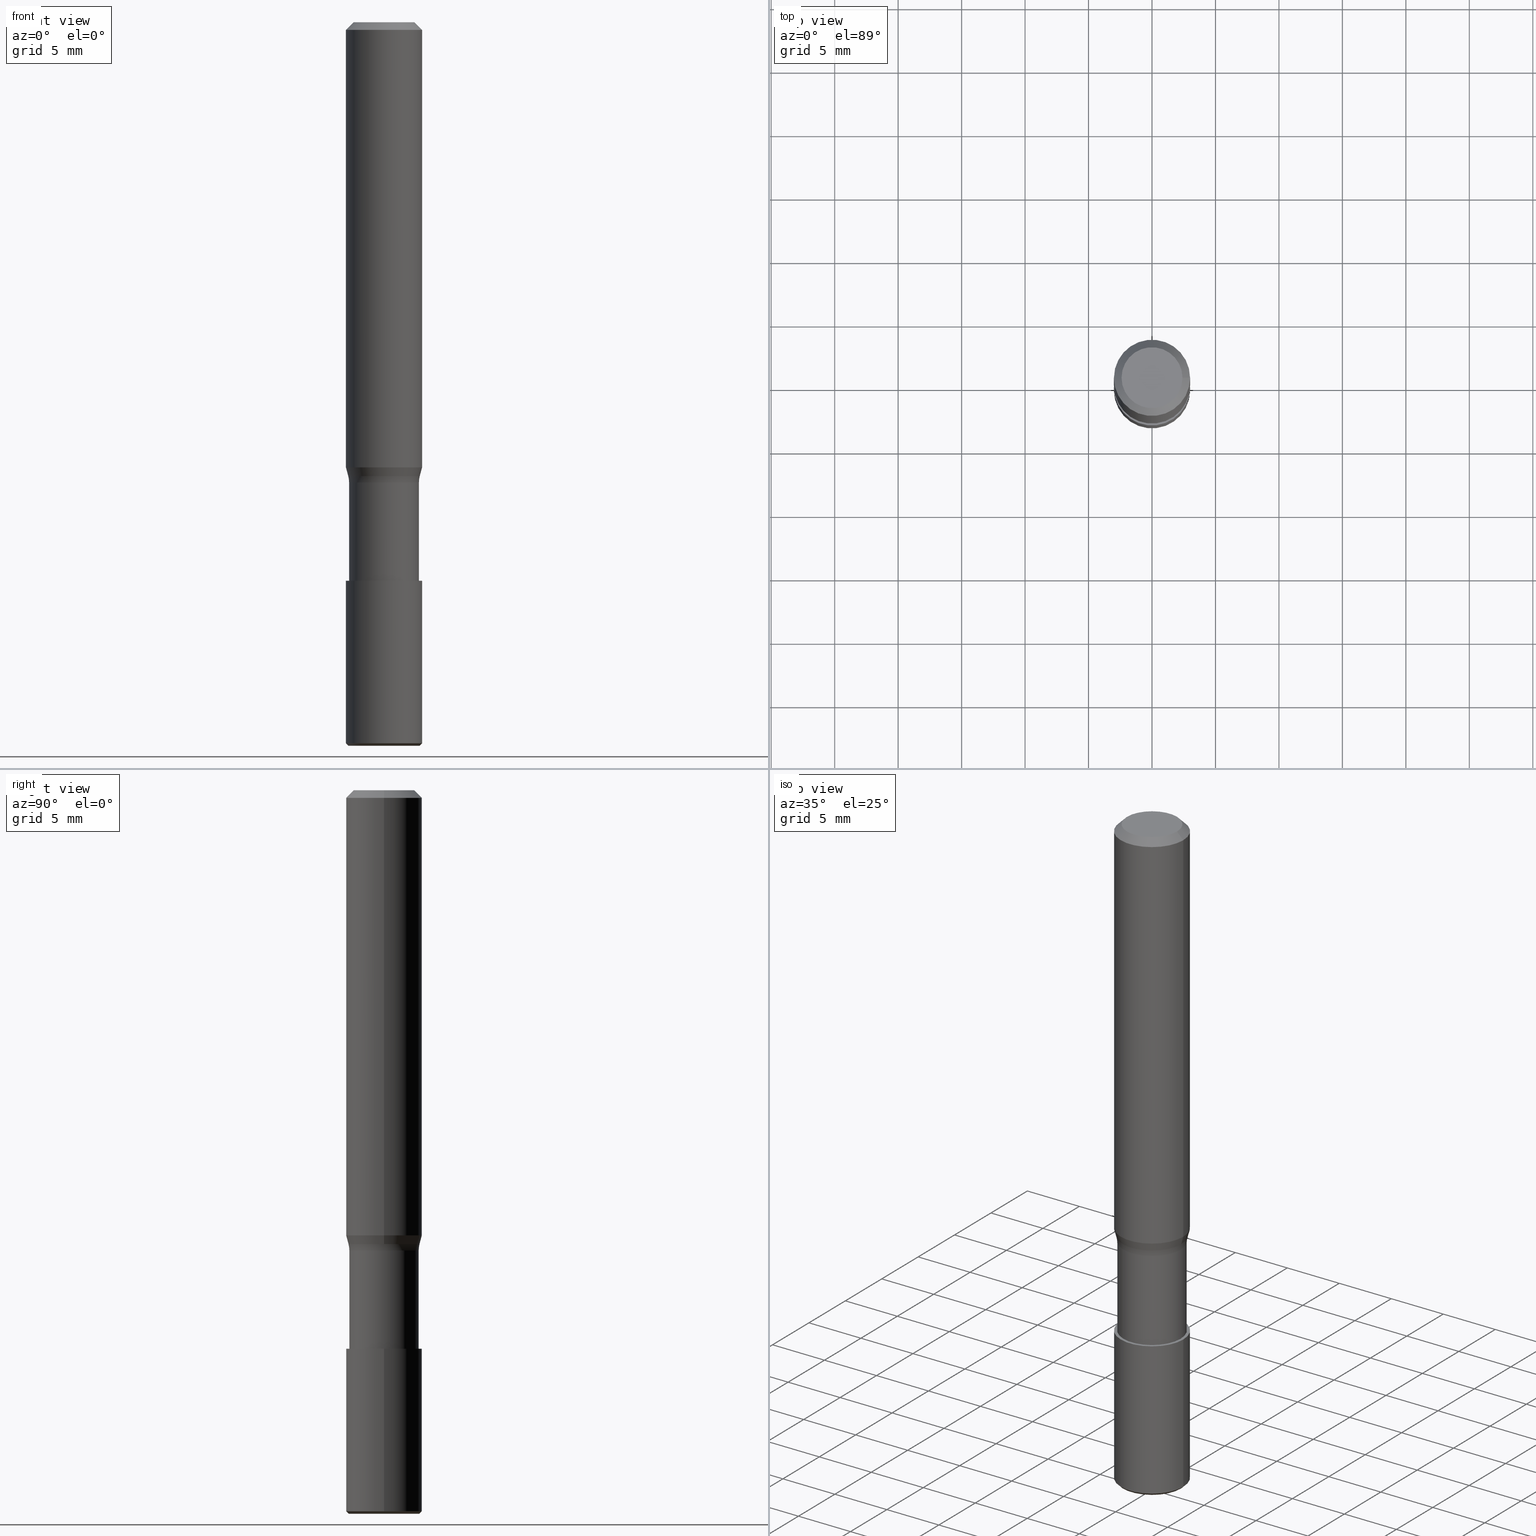
[diagram: canonical four-view strip — front | top / right | iso, engineering-drawing reading convention]
A machine part, canonical four-view strip (front | top / right | iso — engineering-drawing reading convention). The complete STEP part file that produces these views, byte-faithful:
ISO-10303-21;
HEADER;
FILE_DESCRIPTION (( 'STEP AP203' ),
    '1' );
FILE_NAME ('738.060.00.STEP',
    '2019-01-09T01:38:48',
    ( '' ),
    ( '' ),
    'SwSTEP 2.0',
    'SolidWorks 2019',
    '' );
FILE_SCHEMA (( 'CONFIG_CONTROL_DESIGN' ));
ENDSEC;

DATA;
#1 = DIRECTION ( 'NONE',  ( -6.982962677686266711E-15, 0.0000000000000000000, -1.000000000000000000 ) ) ;
#2 = ORIENTED_EDGE ( 'NONE', *, *, #177, .T. ) ;
#3 = CIRCLE ( 'NONE', #7, 2.818148347421864042 ) ;
#4 = CIRCLE ( 'NONE', #278, 2.750000000000000000 ) ;
#5 = CARTESIAN_POINT ( 'NONE',  ( -3.980288726281171773E-13, 0.0000000000000000000, -56.99999999999999289 ) ) ;
#6 = DIRECTION ( 'NONE',  ( 6.982962677686266711E-15, 0.0000000000000000000, 1.000000000000000000 ) ) ;
#7 = AXIS2_PLACEMENT_3D ( 'NONE', #81, #1, #110 ) ;
#8 = ADVANCED_FACE ( 'NONE', ( #46 ), #149, .T. ) ;
#9 = CARTESIAN_POINT ( 'NONE',  ( 2.999999999999772182, 0.0000000000000000000, -35.06698729810774040 ) ) ;
#10 = ORIENTED_EDGE ( 'NONE', *, *, #35, .T. ) ;
#11 = EDGE_CURVE ( 'NONE', #258, #258, #171, .T. ) ;
#12 = APPLICATION_PROTOCOL_DEFINITION ( 'international standard', 'config_control_design', 1994, #236 ) ;
#13 = DATE_AND_TIME ( #214, #282 ) ;
#14 = CALENDAR_DATE ( 2019, 9, 1 ) ;
#15 = FACE_OUTER_BOUND ( 'NONE', #150, .T. ) ;
#16 = APPLICATION_PROTOCOL_DEFINITION ( 'international standard', 'config_control_design', 1994, #29 ) ;
#17 = FACE_OUTER_BOUND ( 'NONE', #64, .T. ) ;
#18 = CC_DESIGN_DATE_AND_TIME_ASSIGNMENT ( #67, #95, ( #228 ) ) ;
#19 = CARTESIAN_POINT ( 'NONE',  ( -3.000000000000447198, 0.0000000000000000000, -56.79999999999995453 ) ) ;
#20 = APPROVAL_DATE_TIME ( #37, #132 ) ;
#21 = VERTEX_POINT ( 'NONE', #196 ) ;
#22 = ORIENTED_EDGE ( 'NONE', *, *, #93, .T. ) ;
#23 = CC_DESIGN_PERSON_AND_ORGANIZATION_ASSIGNMENT ( #111, #213, ( #234 ) ) ;
#24 = DIRECTION ( 'NONE',  ( 0.0000000000000000000, 0.0000000000000000000, 1.000000000000000000 ) ) ;
#25 = PLANE ( 'NONE',  #157 ) ;
#26 = AXIS2_PLACEMENT_3D ( 'NONE', #125, #127, #281 ) ;
#27 = FACE_OUTER_BOUND ( 'NONE', #190, .T. ) ;
#28 = PERSON_AND_ORGANIZATION ( #260, #218 ) ;
#29 = APPLICATION_CONTEXT ( 'configuration controlled 3d designs of mechanical parts and assemblies' ) ;
#30 =( NAMED_UNIT ( * ) PLANE_ANGLE_UNIT ( ) SI_UNIT ( $, .RADIAN. ) );
#31 = ADVANCED_FACE ( 'NONE', ( #123, #240 ), #90, .T. ) ;
#32 = COORDINATED_UNIVERSAL_TIME_OFFSET ( 1, 0, .AHEAD. ) ;
#33 = CALENDAR_DATE ( 2019, 9, 1 ) ;
#34 = PERSON_AND_ORGANIZATION ( #260, #218 ) ;
#35 = EDGE_CURVE ( 'NONE', #87, #87, #50, .T. ) ;
#36 = DIRECTION ( 'NONE',  ( 1.000000000000000000, 0.0000000000000000000, -6.938893903907188146E-15 ) ) ;
#37 = DATE_AND_TIME ( #254, #48 ) ;
#38 = DIRECTION ( 'NONE',  ( -6.982962677686266711E-15, -0.0000000000000000000, -1.000000000000000000 ) ) ;
#39 = APPROVAL ( #144, 'UNSPECIFIED' ) ;
#40 = CARTESIAN_POINT ( 'NONE',  ( 0.0000000000000000000, 0.0000000000000000000, 0.0000000000000000000 ) ) ;
#41 = APPROVAL_ROLE ( '' ) ;
#42 = CARTESIAN_POINT ( 'NONE',  ( -2.532253053508595603E-13, 0.0000000000000000000, -36.26330499517479922 ) ) ;
#43 = FACE_BOUND ( 'NONE', #56, .T. ) ;
#44 = ADVANCED_FACE ( 'NONE', ( #104, #155 ), #207, .T. ) ;
#45 = ADVANCED_FACE ( 'NONE', ( #114 ), #274, .F. ) ;
#46 = FACE_OUTER_BOUND ( 'NONE', #248, .T. ) ;
#47 = PERSON_AND_ORGANIZATION_ROLE ( 'design_supplier' ) ;
#48 = LOCAL_TIME ( 2, 38, 48.00000000000000000, #73 ) ;
#49 = FACE_OUTER_BOUND ( 'NONE', #115, .T. ) ;
#50 = CIRCLE ( 'NONE', #129, 3.000000000000000000 ) ;
#51 = PERSON_AND_ORGANIZATION_ROLE ( 'creator' ) ;
#52 = CARTESIAN_POINT ( 'NONE',  ( 2.999999999999995559, 0.0000000000000000000, -0.6000000000000241807 ) ) ;
#53 = CARTESIAN_POINT ( 'NONE',  ( -2.800000000000430589, 0.0000000000000000000, -56.99999999999995737 ) ) ;
#54 = AXIS2_PLACEMENT_3D ( 'NONE', #235, #86, #220 ) ;
#55 = VERTEX_POINT ( 'NONE', #53 ) ;
#56 = EDGE_LOOP ( 'NONE', ( #66 ) ) ;
#57 = APPROVAL_DATE_TIME ( #239, #39 ) ;
#58 = EDGE_LOOP ( 'NONE', ( #158 ) ) ;
#59 = PRODUCT_DEFINITION_SHAPE ( 'NONE', 'NONE',  #101 ) ;
#60 = DIRECTION ( 'NONE',  ( -1.000000000000000000, 0.0000000000000000000, 6.982962677686266711E-15 ) ) ;
#61 = PRODUCT_RELATED_PRODUCT_CATEGORY ( 'detail', '', ( #234 ) ) ;
#62 = AXIS2_PLACEMENT_3D ( 'NONE', #269, #187, #60 ) ;
#63 = MANIFOLD_SOLID_BREP ( 'K�rper in Z minus drehen[1]', #198 ) ;
#64 = EDGE_LOOP ( 'NONE', ( #128 ) ) ;
#65 = EDGE_CURVE ( 'NONE', #122, #122, #275, .T. ) ;
#66 = ORIENTED_EDGE ( 'NONE', *, *, #177, .F. ) ;
#67 = DATE_AND_TIME ( #14, #131 ) ;
#68 = DIRECTION ( 'NONE',  ( -1.000000000000000000, 0.0000000000000000000, 9.912705577010301686E-15 ) ) ;
#69 = DIRECTION ( 'NONE',  ( 1.000000000000000000, 0.0000000000000000000, -6.938893903907188146E-15 ) ) ;
#70 = CIRCLE ( 'NONE', #264, 2.399999999999998135 ) ;
#71 = APPROVAL_STATUS ( 'not_yet_approved' ) ;
#72 = FACE_BOUND ( 'NONE', #146, .T. ) ;
#73 = COORDINATED_UNIVERSAL_TIME_OFFSET ( 1, 0, .AHEAD. ) ;
#74 = CIRCLE ( 'NONE', #215, 3.000000000000017319 ) ;
#75 = CARTESIAN_POINT ( 'NONE',  ( -4.189777606611783692E-15, 0.0000000000000000000, -0.6000000000000033085 ) ) ;
#76 = APPROVAL_PERSON_ORGANIZATION ( #168, #39, #197 ) ;
#77 = ADVANCED_FACE ( 'NONE', ( #145, #15 ), #211, .T. ) ;
#78 = DIRECTION ( 'NONE',  ( 6.982962677686266711E-15, 0.0000000000000000000, 1.000000000000000000 ) ) ;
#79 = CC_DESIGN_PERSON_AND_ORGANIZATION_ASSIGNMENT ( #34, #51, ( #223 ) ) ;
#80 = APPROVAL_PERSON_ORGANIZATION ( #166, #206, #41 ) ;
#81 = CARTESIAN_POINT ( 'NONE',  ( -2.496106578864089308E-13, 0.0000000000000000000, -35.74566690496974530 ) ) ;
#82 = ORIENTED_EDGE ( 'NONE', *, *, #35, .F. ) ;
#83 = DIRECTION ( 'NONE',  ( -6.982962677686266711E-15, 0.0000000000000000000, -1.000000000000000000 ) ) ;
#84 = CONICAL_SURFACE ( 'NONE', #203, 2.800000000000006928, 0.7853981633974795873 ) ;
#85 = DIRECTION ( 'NONE',  ( -6.982962677686266711E-15, 0.0000000000000000000, -1.000000000000000000 ) ) ;
#86 = DIRECTION ( 'NONE',  ( -8.958160326633956100E-15, 0.0000000000000000000, -1.000000000000000000 ) ) ;
#87 = VERTEX_POINT ( 'NONE', #52 ) ;
#88 = EDGE_LOOP ( 'NONE', ( #160 ) ) ;
#89 = DATE_TIME_ROLE ( 'creation_date' ) ;
#90 = CONICAL_SURFACE ( 'NONE', #268, 2.818148347421864042, 0.2617993877991502960 ) ;
#91 = EDGE_LOOP ( 'NONE', ( #267 ) ) ;
#92 = EDGE_CURVE ( 'NONE', #175, #175, #246, .T. ) ;
#93 = EDGE_CURVE ( 'NONE', #133, #133, #4, .T. ) ;
#94 = PERSON_AND_ORGANIZATION ( #260, #218 ) ;
#95 = DATE_TIME_ROLE ( 'classification_date' ) ;
#96 = CYLINDRICAL_SURFACE ( 'NONE', #97, 3.000000000000017319 ) ;
#97 = AXIS2_PLACEMENT_3D ( 'NONE', #201, #204, #69 ) ;
#98 = UNCERTAINTY_MEASURE_WITH_UNIT (LENGTH_MEASURE( 1.000000000000000082E-05 ), #238, 'distance_accuracy_value', 'NONE');
#99 = DIRECTION ( 'NONE',  ( 6.982962677686266711E-15, 0.0000000000000000000, 1.000000000000000000 ) ) ;
#100 = ADVANCED_FACE ( 'NONE', ( #27, #49 ), #96, .T. ) ;
#101 = PRODUCT_DEFINITION ( 'UNKNOWN', '', #223, #159 ) ;
#102 = TOROIDAL_SURFACE ( 'NONE', #62, 4.750000000000000000, 2.000000000000002220 ) ;
#103 = CC_DESIGN_APPROVAL ( #39, ( #223 ) ) ;
#104 = FACE_OUTER_BOUND ( 'NONE', #143, .T. ) ;
#105 = CIRCLE ( 'NONE', #273, 2.800000000000006928 ) ;
#106 = CARTESIAN_POINT ( 'NONE',  ( -3.072503578181957858E-13, 0.0000000000000000000, -44.00000000000000711 ) ) ;
#107 = CARTESIAN_POINT ( 'NONE',  ( -2.750000000000306866, 0.0000000000000000000, -43.99999999999997868 ) ) ;
#108 = APPROVAL_PERSON_ORGANIZATION ( #172, #132, #263 ) ;
#109 = DIRECTION ( 'NONE',  ( 1.000000000000000000, 0.0000000000000000000, -7.373952358995601206E-15 ) ) ;
#110 = DIRECTION ( 'NONE',  ( -1.000000000000000000, 0.0000000000000000000, 7.386652207562273696E-15 ) ) ;
#111 = PERSON_AND_ORGANIZATION ( #260, #218 ) ;
#112 = EDGE_CURVE ( 'NONE', #55, #55, #105, .T. ) ;
#113 = COORDINATED_UNIVERSAL_TIME_OFFSET ( 1, 0, .AHEAD. ) ;
#114 = FACE_OUTER_BOUND ( 'NONE', #237, .T. ) ;
#115 = EDGE_LOOP ( 'NONE', ( #135 ) ) ;
#116 = COORDINATED_UNIVERSAL_TIME_OFFSET ( 1, 0, .AHEAD. ) ;
#117 = PERSON_AND_ORGANIZATION_ROLE ( 'creator' ) ;
#118 = COORDINATED_UNIVERSAL_TIME_OFFSET ( 1, 0, .AHEAD. ) ;
#119 = CC_DESIGN_PERSON_AND_ORGANIZATION_ASSIGNMENT ( #170, #47, ( #223 ) ) ;
#120 = DIRECTION ( 'NONE',  ( -6.982962677686266711E-15, 0.0000000000000000000, -1.000000000000000000 ) ) ;
#121 = APPROVAL_DATE_TIME ( #13, #206 ) ;
#122 = VERTEX_POINT ( 'NONE', #202 ) ;
#123 = FACE_OUTER_BOUND ( 'NONE', #251, .T. ) ;
#124 = CC_DESIGN_APPROVAL ( #132, ( #228 ) ) ;
#125 = CARTESIAN_POINT ( 'NONE',  ( -7.525997073249809467E-31, 0.0000000000000000000, -1.077765616204535070E-16 ) ) ;
#126 = FACE_OUTER_BOUND ( 'NONE', #137, .T. ) ;
#127 = DIRECTION ( 'NONE',  ( 6.982962677686266711E-15, 0.0000000000000000000, 1.000000000000000000 ) ) ;
#128 = ORIENTED_EDGE ( 'NONE', *, *, #189, .F. ) ;
#129 = AXIS2_PLACEMENT_3D ( 'NONE', #75, #232, #244 ) ;
#130 = AXIS2_PLACEMENT_3D ( 'NONE', #5, #249, #36 ) ;
#131 = LOCAL_TIME ( 2, 38, 48.00000000000000000, #118 ) ;
#132 = APPROVAL ( #71, 'UNSPECIFIED' ) ;
#133 = VERTEX_POINT ( 'NONE', #107 ) ;
#134 = DIRECTION ( 'NONE',  ( -1.000000000000000000, 0.0000000000000000000, 6.982962677686266711E-15 ) ) ;
#135 = ORIENTED_EDGE ( 'NONE', *, *, #189, .T. ) ;
#136 = DIRECTION ( 'NONE',  ( 1.000000000000000000, 0.0000000000000000000, -6.938893903907188146E-15 ) ) ;
#137 = EDGE_LOOP ( 'NONE', ( #10 ) ) ;
#138 = DIRECTION ( 'NONE',  ( -1.000000000000000000, 0.0000000000000000000, 6.982962677686266711E-15 ) ) ;
#139 =( NAMED_UNIT ( * ) SI_UNIT ( $, .STERADIAN. ) SOLID_ANGLE_UNIT ( ) );
#140 = VERTEX_POINT ( 'NONE', #169 ) ;
#141 = DATE_AND_TIME ( #194, #265 ) ;
#142 = DIRECTION ( 'NONE',  ( -1.000000000000000000, 0.0000000000000000000, 7.569702440626066317E-15 ) ) ;
#143 = EDGE_LOOP ( 'NONE', ( #82 ) ) ;
#144 = APPROVAL_STATUS ( 'not_yet_approved' ) ;
#145 = FACE_OUTER_BOUND ( 'NONE', #253, .T. ) ;
#146 = EDGE_LOOP ( 'NONE', ( #183 ) ) ;
#147 = CARTESIAN_POINT ( 'NONE',  ( 0.0000000000000000000, 0.0000000000000000000, 0.0000000000000000000 ) ) ;
#148 = SECURITY_CLASSIFICATION_LEVEL ( 'unclassified' ) ;
#149 = PLANE ( 'NONE',  #26 ) ;
#150 = EDGE_LOOP ( 'NONE', ( #208 ) ) ;
#151 = CARTESIAN_POINT ( 'NONE',  ( -4.237064420644370273E-13, 0.0000000000000000000, -56.99999999999998579 ) ) ;
#152 = ADVANCED_FACE ( 'NONE', ( #17 ), #277, .T. ) ;
#153 = CONICAL_SURFACE ( 'NONE', #199, 2.399999999999998135, 0.7853981633974472798 ) ;
#154 = ADVANCED_FACE ( 'NONE', ( #162 ), #25, .T. ) ;
#155 = FACE_OUTER_BOUND ( 'NONE', #182, .T. ) ;
#156 = CARTESIAN_POINT ( 'NONE',  ( -4.237064420644370273E-13, 0.0000000000000000000, -56.99999999999998579 ) ) ;
#157 = AXIS2_PLACEMENT_3D ( 'NONE', #106, #231, #138 ) ;
#158 = ORIENTED_EDGE ( 'NONE', *, *, #256, .T. ) ;
#159 = DESIGN_CONTEXT ( 'detailed design', #236, 'design' ) ;
#160 = ORIENTED_EDGE ( 'NONE', *, *, #256, .F. ) ;
#161 = SHAPE_DEFINITION_REPRESENTATION ( #59, #210 ) ;
#162 = FACE_OUTER_BOUND ( 'NONE', #205, .T. ) ;
#163 = CARTESIAN_POINT ( 'NONE',  ( -4.237064420644371283E-13, 0.0000000000000000000, -56.99999999999999289 ) ) ;
#164 = LOCAL_TIME ( 2, 38, 48.00000000000000000, #32 ) ;
#165 = CC_DESIGN_SECURITY_CLASSIFICATION ( #228, ( #223 ) ) ;
#166 = PERSON_AND_ORGANIZATION ( #260, #218 ) ;
#167 = PERSON_AND_ORGANIZATION_ROLE ( 'classification_officer' ) ;
#168 = PERSON_AND_ORGANIZATION ( #260, #218 ) ;
#169 = CARTESIAN_POINT ( 'NONE',  ( 2.999999999999710454, 0.0000000000000000000, -44.00000000000002132 ) ) ;
#170 = PERSON_AND_ORGANIZATION ( #260, #218 ) ;
#171 = CIRCLE ( 'NONE', #226, 3.000000000000017319 ) ;
#172 = PERSON_AND_ORGANIZATION ( #260, #218 ) ;
#173 = DIRECTION ( 'NONE',  ( 1.000000000000000000, 0.0000000000000000000, -9.912705577010301686E-15 ) ) ;
#174 =( GEOMETRIC_REPRESENTATION_CONTEXT ( 3 ) GLOBAL_UNCERTAINTY_ASSIGNED_CONTEXT ( ( #98 ) ) GLOBAL_UNIT_ASSIGNED_CONTEXT ( ( #238, #30, #139 ) ) REPRESENTATION_CONTEXT ( 'NONE', 'WORKASPACE' ) );
#175 = VERTEX_POINT ( 'NONE', #19 ) ;
#176 = DIRECTION ( 'NONE',  ( -1.000000000000000000, 0.0000000000000000000, 6.982962677686266711E-15 ) ) ;
#177 = EDGE_CURVE ( 'NONE', #21, #21, #70, .T. ) ;
#178 = FACE_OUTER_BOUND ( 'NONE', #58, .T. ) ;
#179 = MANIFOLD_SOLID_BREP ( 'K�rper in Z minus drehen[2]', #276 ) ;
#180 = DIRECTION ( 'NONE',  ( 1.000000000000000000, 0.0000000000000000000, -7.386652207562273696E-15 ) ) ;
#181 = CARTESIAN_POINT ( 'NONE',  ( -2.496106578864089308E-13, 0.0000000000000000000, -35.74566690496974530 ) ) ;
#182 = EDGE_LOOP ( 'NONE', ( #221 ) ) ;
#183 = ORIENTED_EDGE ( 'NONE', *, *, #112, .F. ) ;
#184 = AXIS2_PLACEMENT_3D ( 'NONE', #40, #83, #134 ) ;
#185 = DIRECTION ( 'NONE',  ( 1.000000000000000000, 0.0000000000000000000, -6.982962677686266711E-15 ) ) ;
#186 = CC_DESIGN_PERSON_AND_ORGANIZATION_ASSIGNMENT ( #94, #117, ( #101 ) ) ;
#187 = DIRECTION ( 'NONE',  ( -6.982962677686266711E-15, 0.0000000000000000000, -1.000000000000000000 ) ) ;
#188 = ORIENTED_EDGE ( 'NONE', *, *, #65, .T. ) ;
#189 = EDGE_CURVE ( 'NONE', #140, #140, #74, .T. ) ;
#190 = EDGE_LOOP ( 'NONE', ( #229 ) ) ;
#191 = AXIS2_PLACEMENT_3D ( 'NONE', #42, #120, #142 ) ;
#192 = FACE_OUTER_BOUND ( 'NONE', #241, .T. ) ;
#193 = DIRECTION ( 'NONE',  ( 1.000000000000000000, 0.0000000000000000000, 0.0000000000000000000 ) ) ;
#194 = CALENDAR_DATE ( 2019, 9, 1 ) ;
#195 = DIRECTION ( 'NONE',  ( -1.000000000000000000, 0.0000000000000000000, 7.569702440626067895E-15 ) ) ;
#196 = CARTESIAN_POINT ( 'NONE',  ( 2.399999999999998135, 0.0000000000000000000, -1.675911042644702748E-14 ) ) ;
#197 = APPROVAL_ROLE ( '' ) ;
#198 = CLOSED_SHELL ( 'NONE', ( #45, #209, #100, #152 ) ) ;
#199 = AXIS2_PLACEMENT_3D ( 'NONE', #224, #279, #176 ) ;
#200 = MECHANICAL_CONTEXT ( 'NONE', #29, 'mechanical' ) ;
#201 = CARTESIAN_POINT ( 'NONE',  ( -3.980288726281171773E-13, 0.0000000000000000000, -56.99999999999999289 ) ) ;
#202 = CARTESIAN_POINT ( 'NONE',  ( -2.750000000000253575, 0.0000000000000000000, -36.26330499517477790 ) ) ;
#203 = AXIS2_PLACEMENT_3D ( 'NONE', #151, #217, #173 ) ;
#204 = DIRECTION ( 'NONE',  ( 6.982962677686266711E-15, 0.0000000000000000000, 1.000000000000000000 ) ) ;
#205 = EDGE_LOOP ( 'NONE', ( #22 ) ) ;
#206 = APPROVAL ( #255, 'UNSPECIFIED' ) ;
#207 = CYLINDRICAL_SURFACE ( 'NONE', #130, 3.000000000000017319 ) ;
#208 = ORIENTED_EDGE ( 'NONE', *, *, #93, .F. ) ;
#209 = ADVANCED_FACE ( 'NONE', ( #192, #72 ), #84, .T. ) ;
#210 = ADVANCED_BREP_SHAPE_REPRESENTATION ( '738.060.00', ( #63, #179, #261 ), #174 ) ;
#211 = CYLINDRICAL_SURFACE ( 'NONE', #184, 2.750000000000000000 ) ;
#212 = ORIENTED_EDGE ( 'NONE', *, *, #11, .F. ) ;
#213 = PERSON_AND_ORGANIZATION_ROLE ( 'design_owner' ) ;
#214 = CALENDAR_DATE ( 2019, 9, 1 ) ;
#215 = AXIS2_PLACEMENT_3D ( 'NONE', #270, #38, #136 ) ;
#216 = CARTESIAN_POINT ( 'NONE',  ( -3.072503578181957353E-13, 0.0000000000000000000, -44.00000000000000000 ) ) ;
#217 = DIRECTION ( 'NONE',  ( 8.958160326633956100E-15, 0.0000000000000000000, 1.000000000000000000 ) ) ;
#218 = ORGANIZATION ( 'UNSPECIFIED', 'UNSPECIFIED', '' ) ;
#219 = ORIENTED_EDGE ( 'NONE', *, *, #92, .T. ) ;
#220 = DIRECTION ( 'NONE',  ( -1.000000000000000000, 0.0000000000000000000, 9.251858538542893336E-15 ) ) ;
#221 = ORIENTED_EDGE ( 'NONE', *, *, #11, .T. ) ;
#222 = ADVANCED_FACE ( 'NONE', ( #126, #43 ), #153, .T. ) ;
#223 = PRODUCT_DEFINITION_FORMATION_WITH_SPECIFIED_SOURCE ( 'ANY', '', #234, .NOT_KNOWN. ) ;
#224 = CARTESIAN_POINT ( 'NONE',  ( 0.0000000000000000000, 0.0000000000000000000, 0.0000000000000000000 ) ) ;
#225 = DIRECTION ( 'NONE',  ( 1.000000000000000000, 0.0000000000000000000, -6.938893903907188146E-15 ) ) ;
#226 = AXIS2_PLACEMENT_3D ( 'NONE', #262, #99, #225 ) ;
#227 = AXIS2_PLACEMENT_3D ( 'NONE', #230, #271, #250 ) ;
#228 = SECURITY_CLASSIFICATION ( '', '', #148 ) ;
#229 = ORIENTED_EDGE ( 'NONE', *, *, #92, .F. ) ;
#230 = CARTESIAN_POINT ( 'NONE',  ( 2.999999999999686473, 0.0000000000000000000, -44.00000000000002132 ) ) ;
#231 = DIRECTION ( 'NONE',  ( -6.982962677686266711E-15, 0.0000000000000000000, -1.000000000000000000 ) ) ;
#232 = DIRECTION ( 'NONE',  ( 6.982962677686266711E-15, 0.0000000000000000000, 1.000000000000000000 ) ) ;
#233 = DIRECTION ( 'NONE',  ( 7.373952358995601206E-15, -0.0000000000000000000, 1.000000000000000000 ) ) ;
#234 = PRODUCT ( '738.060.00', '738.060.00', '', ( #200 ) ) ;
#235 = CARTESIAN_POINT ( 'NONE',  ( -4.219148099991102118E-13, 0.0000000000000000000, -56.79999999999998295 ) ) ;
#236 = APPLICATION_CONTEXT ( 'configuration controlled 3d designs of mechanical parts and assemblies' ) ;
#237 = EDGE_LOOP ( 'NONE', ( #272 ) ) ;
#238 =( LENGTH_UNIT ( ) NAMED_UNIT ( * ) SI_UNIT ( .MILLI., .METRE. ) );
#239 = DATE_AND_TIME ( #33, #164 ) ;
#240 = FACE_BOUND ( 'NONE', #88, .T. ) ;
#241 = EDGE_LOOP ( 'NONE', ( #219 ) ) ;
#242 = AXIS2_PLACEMENT_3D ( 'NONE', #163, #233, #109 ) ;
#243 = CC_DESIGN_APPROVAL ( #206, ( #101 ) ) ;
#244 = DIRECTION ( 'NONE',  ( 1.000000000000000000, 0.0000000000000000000, -6.975033976323412122E-15 ) ) ;
#245 = ADVANCED_FACE ( 'NONE', ( #178, #247 ), #102, .F. ) ;
#246 = CIRCLE ( 'NONE', #54, 3.000000000000025313 ) ;
#247 = FACE_OUTER_BOUND ( 'NONE', #91, .T. ) ;
#248 = EDGE_LOOP ( 'NONE', ( #2 ) ) ;
#249 = DIRECTION ( 'NONE',  ( 6.982962677686266711E-15, 0.0000000000000000000, 1.000000000000000000 ) ) ;
#250 = DIRECTION ( 'NONE',  ( 1.000000000000000000, 0.0000000000000000000, -6.982962677686266711E-15 ) ) ;
#251 = EDGE_LOOP ( 'NONE', ( #212 ) ) ;
#252 = CARTESIAN_POINT ( 'NONE',  ( 0.0000000000000000000, 0.0000000000000000000, 0.0000000000000000000 ) ) ;
#253 = EDGE_LOOP ( 'NONE', ( #188 ) ) ;
#254 = CALENDAR_DATE ( 2019, 9, 1 ) ;
#255 = APPROVAL_STATUS ( 'not_yet_approved' ) ;
#256 = EDGE_CURVE ( 'NONE', #257, #257, #3, .T. ) ;
#257 = VERTEX_POINT ( 'NONE', #259 ) ;
#258 = VERTEX_POINT ( 'NONE', #9 ) ;
#259 = CARTESIAN_POINT ( 'NONE',  ( -2.818148347422114064, 0.0000000000000000000, -35.74566690496972399 ) ) ;
#260 = PERSON ( 'UNSPECIFIED', 'UNSPECIFIED', 'UNSPECIFIED', ('UNSPECIFIED'), ('UNSPECIFIED'), ('UNSPECIFIED') ) ;
#261 = AXIS2_PLACEMENT_3D ( 'NONE', #147, #24, #193 ) ;
#262 = CARTESIAN_POINT ( 'NONE',  ( -2.448714635215845979E-13, 0.0000000000000000000, -35.06698729810771908 ) ) ;
#263 = APPROVAL_ROLE ( '' ) ;
#264 = AXIS2_PLACEMENT_3D ( 'NONE', #252, #78, #185 ) ;
#265 = LOCAL_TIME ( 2, 38, 48.00000000000000000, #116 ) ;
#266 = CC_DESIGN_PERSON_AND_ORGANIZATION_ASSIGNMENT ( #28, #167, ( #228 ) ) ;
#267 = ORIENTED_EDGE ( 'NONE', *, *, #65, .F. ) ;
#268 = AXIS2_PLACEMENT_3D ( 'NONE', #181, #6, #180 ) ;
#269 = CARTESIAN_POINT ( 'NONE',  ( -2.532253053508595603E-13, 0.0000000000000000000, -36.26330499517479922 ) ) ;
#270 = CARTESIAN_POINT ( 'NONE',  ( -3.072503578181957353E-13, 0.0000000000000000000, -44.00000000000000000 ) ) ;
#271 = DIRECTION ( 'NONE',  ( 6.982962677686266711E-15, 0.0000000000000000000, 1.000000000000000000 ) ) ;
#272 = ORIENTED_EDGE ( 'NONE', *, *, #112, .T. ) ;
#273 = AXIS2_PLACEMENT_3D ( 'NONE', #156, #280, #68 ) ;
#274 = PLANE ( 'NONE',  #242 ) ;
#275 = CIRCLE ( 'NONE', #191, 2.750000000000000444 ) ;
#276 = CLOSED_SHELL ( 'NONE', ( #8, #222, #44, #31, #245, #77, #154 ) ) ;
#277 = PLANE ( 'NONE',  #227 ) ;
#278 = AXIS2_PLACEMENT_3D ( 'NONE', #216, #85, #195 ) ;
#279 = DIRECTION ( 'NONE',  ( -6.982962677686266711E-15, 0.0000000000000000000, -1.000000000000000000 ) ) ;
#280 = DIRECTION ( 'NONE',  ( -8.958160326633956100E-15, 0.0000000000000000000, -1.000000000000000000 ) ) ;
#281 = DIRECTION ( 'NONE',  ( 1.000000000000000000, 0.0000000000000000000, -6.982962677686266711E-15 ) ) ;
#282 = LOCAL_TIME ( 2, 38, 48.00000000000000000, #113 ) ;
#283 = CC_DESIGN_DATE_AND_TIME_ASSIGNMENT ( #141, #89, ( #101 ) ) ;
ENDSEC;
END-ISO-10303-21;
19853